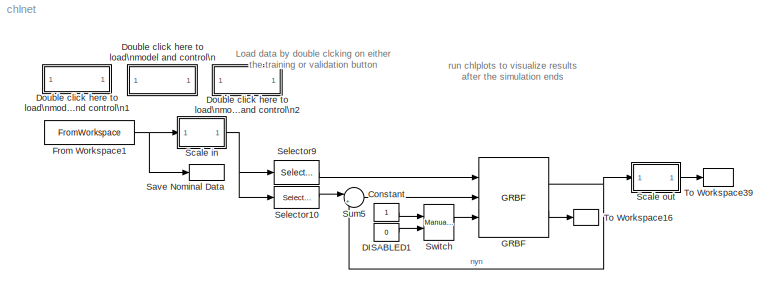
MODEL chlnet
KIND model
BLOCK [Constant] Constant
  SID = 1
BLOCK [Constant] DISABLED1
  SID = 2
  Value = 0
BLOCK [SubSystem] Double click here to load\nmodel and control\n
  OpenFcn = load choles_all;t=t(:,1:130);p=p(:,1:130);mindata=min([t' p']);maxdata=max([t' p']);W=zeros(1,((21+2)*100+2)*3);
  Ports = []
  RequestExecContextInheritance = off
  SID = 3
BLOCK [SubSystem] Double click here to load\nmodel and control\n1
  OpenFcn = edit('training.txt')
  Ports = []
  RequestExecContextInheritance = off
  SID = 4
BLOCK [SubSystem] Double click here to load\nmodel and control\n2
  OpenFcn = load choles_all; t=t(:,131:end);p=p(:,131:end); load chl_W
  Ports = []
  RequestExecContextInheritance = off
  SID = 5
BLOCK [FromWorkspace] From Workspace1
  SID = 6
  SampleTime = 1
  VariableName = [[1:length(t)]' t' p']
BLOCK [Reference] GRBF  REF=ann/GRBF  (lib defined in slx_5ee77b6aec32)
  Ports = [3, 2]
  SID = 7
  SourceBlock = ann/GRBF
  SourceType = GRBF NN
  T = 1
  dim = [21 3]
  e1 = 0.1
  e2 = [0.6  0.6  1]
  e3 = [0.02 0.5]
  eta = [0.0001 0.0001 0.0001]
  gam = [1e-6 1e-6 1e-6]*0
  lim = [1e9 1e9 1e9]
  nwrap = [100   0.4         1e10           1]
  x0 = W(end,:) % zeros(((21+2)*100+2)*3,1) %
BLOCK [ToWorkspace] Save Nominal Data
  Ports = [1]
  SID = 8
  SampleTime = 1
  VariableName = nom
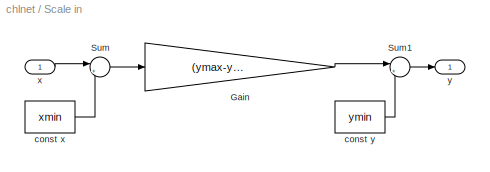
BLOCK [SubSystem] Scale in
  Ports = [1, 1]
  RequestExecContextInheritance = off
  SID = 9
BLOCK [Gain] Scale in/Gain
  Gain = (ymax-ymin)./(xmax-xmin)
  SID = 11
BLOCK [Sum] Scale in/Sum
  IconShape = round
  Inputs = |+-
  Ports = [2, 1]
  SID = 12
BLOCK [Sum] Scale in/Sum1
  IconShape = round
  Inputs = |++
  Ports = [2, 1]
  SID = 13
BLOCK [Constant] Scale in/const x
  SID = 14
  Value = xmin
BLOCK [Constant] Scale in/const y
  SID = 15
  Value = ymin
BLOCK [Inport] Scale in/x
  IconDisplay = Port number
  SID = 10
BLOCK [Outport] Scale in/y
  IconDisplay = Port number
  SID = 16
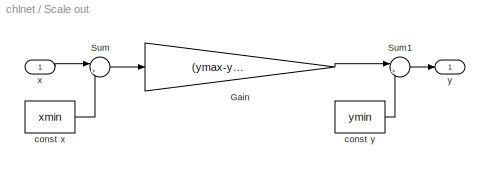
BLOCK [SubSystem] Scale out
  Ports = [1, 1]
  RequestExecContextInheritance = off
  SID = 17
BLOCK [Gain] Scale out/Gain
  Gain = (ymax-ymin)./(xmax-xmin)
  SID = 19
BLOCK [Sum] Scale out/Sum
  IconShape = round
  Inputs = |+-
  Ports = [2, 1]
  SID = 20
BLOCK [Sum] Scale out/Sum1
  IconShape = round
  Inputs = |++
  Ports = [2, 1]
  SID = 21
BLOCK [Constant] Scale out/const x
  SID = 22
  Value = xmin
BLOCK [Constant] Scale out/const y
  SID = 23
  Value = ymin
BLOCK [Inport] Scale out/x
  IconDisplay = Port number
  SID = 18
BLOCK [Outport] Scale out/y
  IconDisplay = Port number
  SID = 24
BLOCK [Selector] Selector10
  IndexOptions = Index vector (dialog)
  Indices = 1:3
  InputPortWidth = 24
  OutputSizes = 1
  Ports = [1, 1]
  SID = 25
BLOCK [Selector] Selector9
  IndexOptions = Index vector (dialog)
  Indices = 4:24
  InputPortWidth = 24
  OutputSizes = 1
  Ports = [1, 1]
  SID = 26
BLOCK [Sum] Sum5
  IconShape = round
  Inputs = |+-
  Ports = [2, 1]
  SID = 27
BLOCK [Reference] Switch  REF=simulink3/Nonlinear/Manual Switch
  Ports = [2, 1]
  SID = 28
  SourceBlock = simulink3/Nonlinear/Manual Switch
  SourceProductBaseCode = SL
  SourceProductName = Simulink
  SourceType = Manual Switch
  action = 0
  sw = 1
BLOCK [ToWorkspace] To Workspace16
  Ports = [1]
  SID = 29
  SampleTime = 1
  VariableName = W
BLOCK [ToWorkspace] To Workspace39
  Ports = [1]
  SID = 30
  SampleTime = 1
  VariableName = est
ANNOTATION (root): Load data by double clcking on either \nthe training or validation button
ANNOTATION (root): run chlplots to visualize results \nafter the simulation ends
LINE Constant:1 -> Switch:1
LINE DISABLED1:1 -> Switch:2
NET From Workspace1:1 -> Save Nominal Data:1, Scale in:1
NET GRBF:1 -> Scale out:1, Sum5:2
LINE GRBF:2 -> To Workspace16:1
LINE Scale in/Gain:1 -> Scale in/Sum1:1
LINE Scale in/Sum1:1 -> Scale in/y:1
LINE Scale in/Sum:1 -> Scale in/Gain:1
LINE Scale in/const x:1 -> Scale in/Sum:2
LINE Scale in/const y:1 -> Scale in/Sum1:2
LINE Scale in/x:1 -> Scale in/Sum:1
NET Scale in:1 -> Selector10:1, Selector9:1
LINE Scale out/Gain:1 -> Scale out/Sum1:1
LINE Scale out/Sum1:1 -> Scale out/y:1
LINE Scale out/Sum:1 -> Scale out/Gain:1
LINE Scale out/const x:1 -> Scale out/Sum:2
LINE Scale out/const y:1 -> Scale out/Sum1:2
LINE Scale out/x:1 -> Scale out/Sum:1
LINE Scale out:1 -> To Workspace39:1
LINE Selector10:1 -> Sum5:1
LINE Selector9:1 -> GRBF:1
LINE Sum5:1 -> GRBF:2
LINE Switch:1 -> GRBF:3
note: NET lines group one-source signal fan-out (src -> all destinations, sorted); 1:1 wires keep LINE
